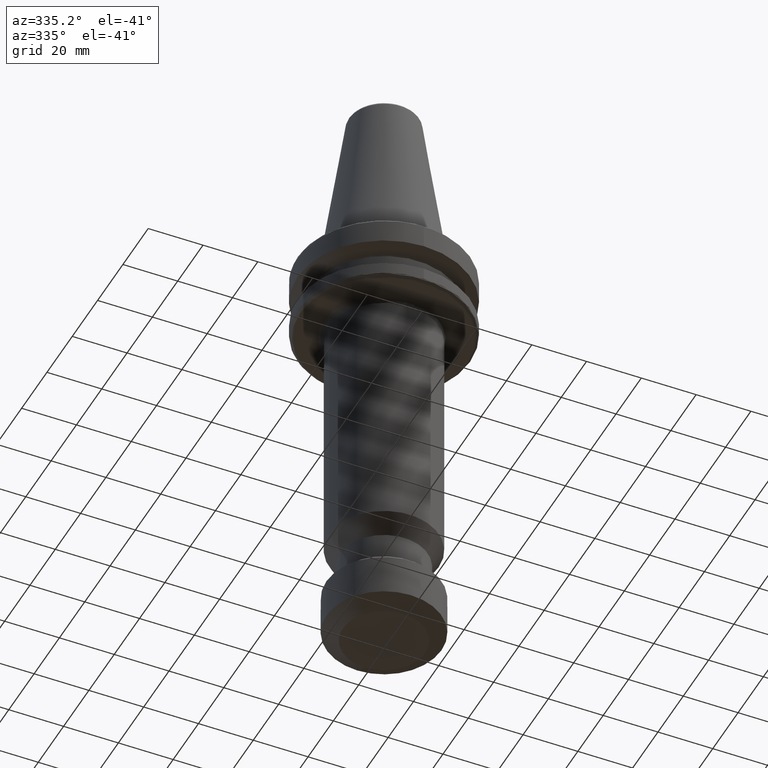
[diagram: clean part render]
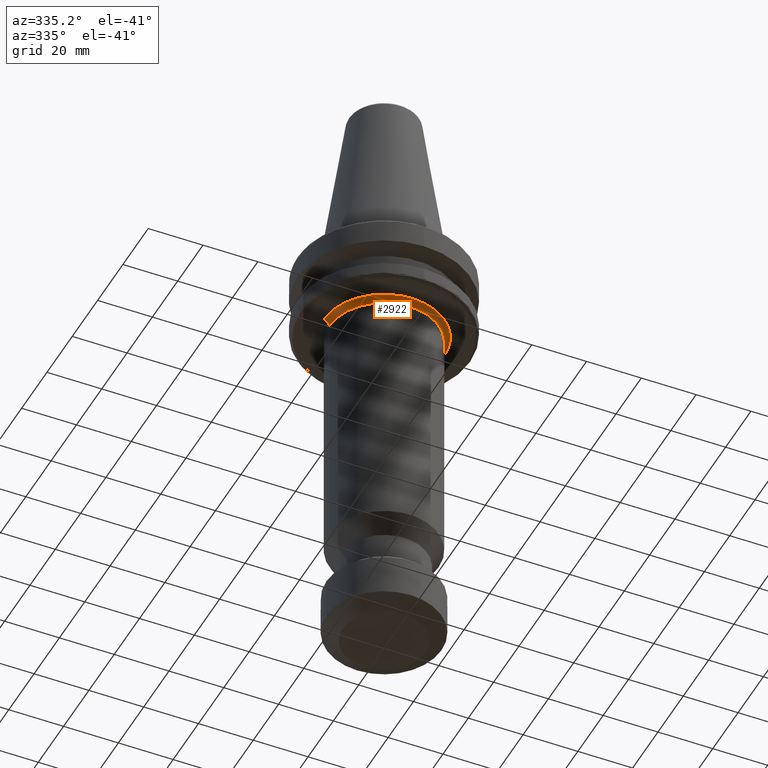
[diagram: same view with one face highlighted and labeled with its STEP entity id]
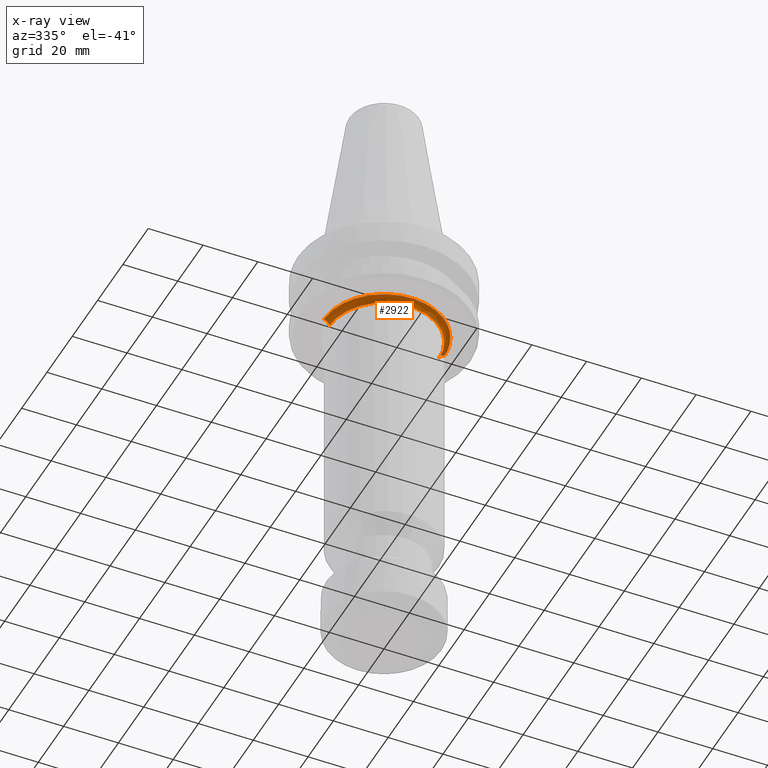
[diagram: x-ray of the same camera — body ghosted, the highlighted face saturated]
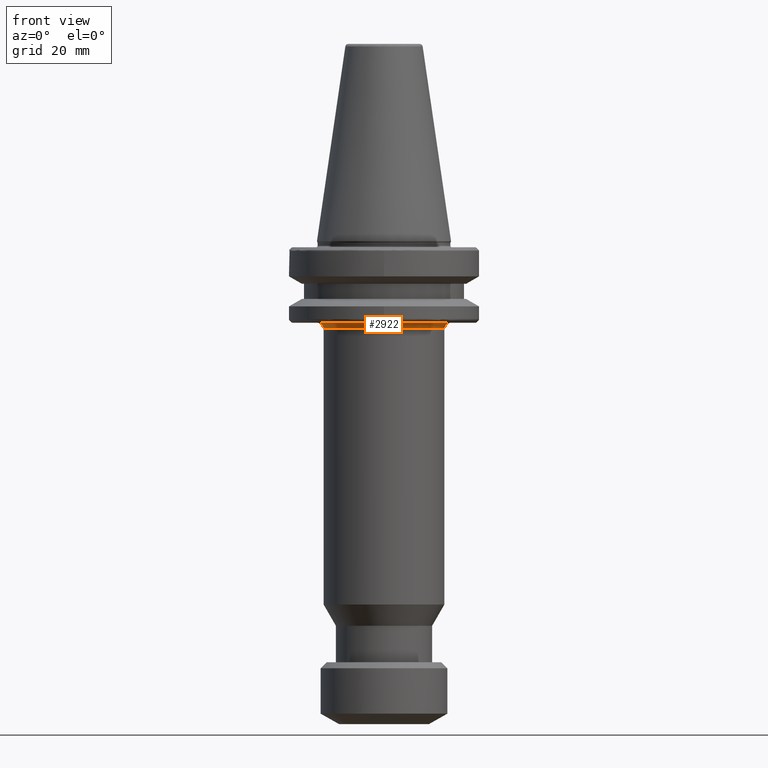
[diagram: same view with one face highlighted and labeled with its STEP entity id]
A machine part, auxiliary view. The second image highlights one B-rep face of the part: STEP entity #2922.
The next image is the same camera in x-ray: the body ghosted, the highlighted face saturated — about 0% of this face is hidden behind the body in this view.
A second angle (front view) of the same face is appended — the face is thin or edge-on in the first view.
In plain terms, the highlighted face is a freeform B-spline surface patch.
Its self-contained STEP definition (entity closure, byte-faithful):
#17 = CARTESIAN_POINT ( 'NONE',  ( -19.99999999992038000, -6.153102855459935800E-009, -28.99999999972065700 ) ) ;
#42 = CARTESIAN_POINT ( 'NONE',  ( 22.00000001121869200, 0.0000000000000000000, -26.99999999980891000 ) ) ;
#49 = CARTESIAN_POINT ( 'NONE',  ( -8.173495906030069600, -20.42539875653572400, -27.00000000000000400 ) ) ;
#126 = CARTESIAN_POINT ( 'NONE',  ( 17.50083256765004000, -13.33134056816139800, -27.00000000000000700 ) ) ;
#142 = CARTESIAN_POINT ( 'NONE',  ( 10.15929076831794800, -19.51388649897149500, -26.99999999999999300 ) ) ;
#158 = CARTESIAN_POINT ( 'NONE',  ( 19.99999999992038000, -1.795872568574660700E-009, -28.99999999972065700 ) ) ;
#223 = CARTESIAN_POINT ( 'NONE',  ( 21.80328170962743400, -2.935493892122123000, -27.00000000000000400 ) ) ;
#289 = CARTESIAN_POINT ( 'NONE',  ( -22.00000001121869500, 0.0000000000000000000, -26.99999999980891000 ) ) ;
#372 = B_SPLINE_CURVE_WITH_KNOTS ( 'NONE', 3,
 ( #2903, #2896, #3059, #3268, #3321, #3361, #3381, #3099, #3403, #3005, #2992, #3032, #836, #3290, #3027, #3150, #3246, #3022, #3103, #2948, #3400, #3206, #2188, #801, #3075, #3015, #3216, #3227, #1341, #3304, #2365, #3083, #3335, #3393, #3331, #2965, #3179, #3007, #2956, #3176, #3416, #3243, #1242, #3185, #3167, #3094, #2988, #2566, #3278, #646, #2982, #3030, #3251, #2946, #3225, #3141, #3258, #3411, #3288, #3283, #3305, #3153, #1571, #3109, #3011, #3049, #3148, #3384, #1180, #3265, #3345, #3367, #1597, #399, #2959, #49, #3196, #3315, #1894, #3127, #1781, #3217, #3280, #2832, #3135, #3270, #3054, #2993, #3311, #3241, #3068, #3424, #3028, #3244, #3264, #3420, #3125, #3200, #1059, #1874, #3123, #3052, #3234, #2975, #3061, #3036, #1589, #3042, #3366, #3017, #3037, #3100, #3310, #142, #3332, #3326, #2677, #2984, #3372, #3294, #3378, #2642, #1505, #3277, #2968, #3211, #3328, #3048, #3066, #3252, #2944, #2981, #3341, #3324, #3413, #3079, #2940, #955, #3272, #3163, #2973, #3117, #126, #1581, #3230, #2293, #2951, #2995, #3340, #3295, #3255, #3237, #3387, #3370, #731, #3316, #2941, #3433, #1495, #2952, #827, #2966, #3076, #1293, #3112, #912, #2784, #1388, #2815, #3113, #1672, #1675, #953, #2535, #470, #1969, #707, #2262, #1983, #223, #1437, #939, #1167 ),
 .UNSPECIFIED., .F., .F.,
 ( 4, 1, 1, 1, 1, 1, 2, 2, 1, 1, 1, 1, 1, 2, 2, 1, 1, 1, 1, 1, 2, 2, 1, 1, 1, 1, 2, 2, 1, 1, 1, 2, 2, 1, 1, 1, 2, 2, 1, 1, 1, 2, 2, 1, 1, 1, 2, 2, 1, 1, 1, 2, 2, 1, 1, 1, 2, 2, 1, 1, 2, 2, 1, 2, 2, 2, 1, 2, 2, 1, 1, 2, 2, 1, 1, 1, 2, 2, 1, 1, 1, 2, 2, 1, 1, 1, 2, 2, 1, 1, 1, 2, 2, 1, 1, 1, 1, 2, 2, 1, 1, 1, 1, 2, 2, 1, 1, 1, 1, 2, 2, 1, 1, 1, 1, 2, 2, 1, 1, 1, 1, 1, 2, 2, 1, 1, 1, 1, 1, 2, 2, 4 ),
 ( 0.0000000000000000000, 0.03124999999999727300, 0.04687499999999590600, 0.05468749999999524000, 0.05859374999999490700, 0.06054687499999471300, 0.06152343749999460800, 0.06249999999999451100, 0.09374999999999152100, 0.1093749999999899900, 0.1171874999999892200, 0.1210937499999888300, 0.1230468749999886200, 0.1240234374999885500, 0.1249999999999884800, 0.1562499999999864600, 0.1718749999999853700, 0.1796874999999847900, 0.1835937499999845100, 0.1855468749999843500, 0.1865234374999843500, 0.1874999999999843200, 0.2031249999999841000, 0.2109374999999839600, 0.2148437499999839300, 0.2167968749999838200, 0.2177734374999838500, 0.2187499999999838700, 0.2343749999999849600, 0.2421874999999855100, 0.2460937499999857300, 0.2480468749999858700, 0.2499999999999860100, 0.2656249999999866800, 0.2734374999999869500, 0.2773437499999870700, 0.2792968749999871200, 0.2812499999999871800, 0.2968749999999877900, 0.3046874999999881200, 0.3085937499999882300, 0.3105468749999882900, 0.3124999999999883400, 0.3281249999999886800, 0.3359374999999889000, 0.3398437499999889500, 0.3417968749999890100, 0.3437499999999890600, 0.3593749999999889500, 0.3671874999999889500, 0.3710937499999889500, 0.3730468749999889000, 0.3749999999999887900, 0.3906249999999883400, 0.3984374999999881200, 0.4023437499999880700, 0.4042968749999880100, 0.4062499999999880100, 0.4218749999999881200, 0.4296874999999881800, 0.4335937499999881800, 0.4374999999999882300, 0.4531249999999884000, 0.4609374999999884000, 0.4687499999999884500, 0.4999999999999886800, 0.5156249999999887900, 0.5234374999999889000, 0.5312499999999889000, 0.5468749999999890100, 0.5546874999999891200, 0.5585937499999891200, 0.5624999999999891200, 0.5781249999999893400, 0.5859374999999893400, 0.5898437499999893400, 0.5917968749999894500, 0.5937499999999894500, 0.6093749999999897900, 0.6171874999999899000, 0.6210937499999900100, 0.6230468749999900100, 0.6249999999999901200, 0.6406249999999897900, 0.6484374999999896700, 0.6523437499999895600, 0.6542968749999896700, 0.6562499999999896700, 0.6718749999999893400, 0.6796874999999892300, 0.6835937499999892300, 0.6855468749999891200, 0.6874999999999891200, 0.7031249999999886800, 0.7109374999999884500, 0.7148437499999883400, 0.7167968749999882300, 0.7177734374999881200, 0.7187499999999880100, 0.7343749999999865700, 0.7421874999999857900, 0.7460937499999854600, 0.7480468749999851200, 0.7490234374999850100, 0.7499999999999849000, 0.7656249999999837900, 0.7734374999999832400, 0.7773437499999830100, 0.7792968749999829000, 0.7802734374999830100, 0.7812499999999830100, 0.7968749999999841200, 0.8046874999999846800, 0.8085937499999847900, 0.8105468749999850100, 0.8115234374999851200, 0.8124999999999852300, 0.8437499999999862300, 0.8593749999999867900, 0.8671874999999869000, 0.8710937499999870100, 0.8730468749999871200, 0.8740234374999871200, 0.8749999999999871200, 0.9062499999999903400, 0.9218749999999917800, 0.9296874999999925600, 0.9335937499999928900, 0.9355468749999931200, 0.9365234374999932300, 0.9374999999999933400, 1.000000000000000000 ),
 .UNSPECIFIED. ) ;
#399 = CARTESIAN_POINT ( 'NONE',  ( -8.679385648396092300, -20.21763437483837200, -26.99999999999999600 ) ) ;
#468 = EDGE_CURVE ( 'NONE', #1903, #3041, #2519, .T. ) ;
#470 = CARTESIAN_POINT ( 'NONE',  ( 21.73654110988302100, -3.399530161110510700, -27.00000000000000000 ) ) ;
#481 = ORIENTED_EDGE ( 'NONE', *, *, #1726, .F. ) ;
#520 = CIRCLE ( 'NONE', #1567, 20.00000000000000000 ) ;
#531 = EDGE_CURVE ( 'NONE', #2656, #2041, #2680, .T. ) ;
#646 = CARTESIAN_POINT ( 'NONE',  ( -16.19076467651567700, -14.89501627364170000, -27.00000000000000400 ) ) ;
#707 = CARTESIAN_POINT ( 'NONE',  ( 21.78895255184394800, -3.040328235875190200, -27.00000000000000000 ) ) ;
#731 = CARTESIAN_POINT ( 'NONE',  ( 18.97720196965637000, -11.13467767543520100, -27.00000000000000000 ) ) ;
#748 = CARTESIAN_POINT ( 'NONE',  ( -20.82842712506634100, 0.0000000000000000000, -27.00000000092554200 ) ) ;
#801 = CARTESIAN_POINT ( 'NONE',  ( -19.89360710836334100, -9.394425037890203000, -26.99999999999999300 ) ) ;
#827 = CARTESIAN_POINT ( 'NONE',  ( 19.75666883649521200, -9.678556099392377400, -27.00000000000000000 ) ) ;
#836 = CARTESIAN_POINT ( 'NONE',  ( -21.37341307168529200, -5.226198028199752900, -26.99999999999999300 ) ) ;
#912 = CARTESIAN_POINT ( 'NONE',  ( 20.96164560837247100, -6.682290359482533600, -26.99999999999999300 ) ) ;
#939 = CARTESIAN_POINT ( 'NONE',  ( 21.99999999870136900, -0.9779484182497384400, -27.00000000000000700 ) ) ;
#953 = CARTESIAN_POINT ( 'NONE',  ( 21.47679687482368000, -4.825525324130469000, -27.00000000000000000 ) ) ;
#955 = CARTESIAN_POINT ( 'NONE',  ( 16.14143180955440100, -14.94840149895921200, -27.00000000000000000 ) ) ;
#1059 = CARTESIAN_POINT ( 'NONE',  ( 4.641485725647572600, -21.50692556377327600, -26.99999999999999300 ) ) ;
#1167 = CARTESIAN_POINT ( 'NONE',  ( 22.00000001121869200, 0.0000000000000000000, -26.99999999980891000 ) ) ;
#1180 = CARTESIAN_POINT ( 'NONE',  ( -10.54006075001914400, -19.31087498501645400, -27.00000000000000000 ) ) ;
#1242 = CARTESIAN_POINT ( 'NONE',  ( -17.62819144436239000, -13.16240955457781300, -27.00000000000000700 ) ) ;
#1293 = CARTESIAN_POINT ( 'NONE',  ( 20.42186733119319400, -8.223918895811449300, -26.99999999999999300 ) ) ;
#1341 = CARTESIAN_POINT ( 'NONE',  ( -19.62676309508689700, -9.945119037977759600, -27.00000000000000700 ) ) ;
#1388 = CARTESIAN_POINT ( 'NONE',  ( 21.08142257468993800, -6.290967004406418500, -26.99999999999999600 ) ) ;
#1437 = CARTESIAN_POINT ( 'NONE',  ( 21.93510324354296900, -1.951399745641772000, -26.99999999999999600 ) ) ;
#1495 = CARTESIAN_POINT ( 'NONE',  ( 19.70985842298505400, -9.773665680997030600, -27.00000000000000000 ) ) ;
#1505 = CARTESIAN_POINT ( 'NONE',  ( 12.48455018687852400, -18.11459585165569300, -26.99999999999999600 ) ) ;
#1567 = AXIS2_PLACEMENT_3D ( 'NONE', #2311, #2307, #2300 ) ;
#1571 = CARTESIAN_POINT ( 'NONE',  ( -12.61092744813771700, -18.02684304559487700, -27.00000000000000700 ) ) ;
#1581 = CARTESIAN_POINT ( 'NONE',  ( 17.54341895000497300, -13.27512476814417000, -27.00000000000000400 ) ) ;
#1589 = CARTESIAN_POINT ( 'NONE',  ( 7.760698686955521500, -20.58578766338533200, -27.00000000000000000 ) ) ;
#1597 = CARTESIAN_POINT ( 'NONE',  ( -9.379296785239677800, -19.90892377151206100, -27.00000000000000700 ) ) ;
#1654 = CARTESIAN_POINT ( 'NONE',  ( -20.00000000092553900, 0.0000000000000000000, -27.82842712506635200 ) ) ;
#1672 = CARTESIAN_POINT ( 'NONE',  ( 21.11515833519508700, -6.176598551940923400, -26.99999999999999300 ) ) ;
#1675 = CARTESIAN_POINT ( 'NONE',  ( 21.27493323261690600, -5.628846329216254500, -27.00000000000000400 ) ) ;
#1726 = EDGE_CURVE ( 'NONE', #2041, #1903, #372, .T. ) ;
#1781 = CARTESIAN_POINT ( 'NONE',  ( -6.171569319574797600, -21.11871598771537600, -27.00000000000000000 ) ) ;
#1857 = CARTESIAN_POINT ( 'NONE',  ( 20.82842712506634100, 0.0000000000000000000, -27.00000000092554200 ) ) ;
#1874 = CARTESIAN_POINT ( 'NONE',  ( 4.973629957077357700, -21.43072956689443500, -27.00000000000000000 ) ) ;
#1894 = CARTESIAN_POINT ( 'NONE',  ( -7.552563884389018200, -20.66784101958773300, -27.00000000000000000 ) ) ;
#1903 = VERTEX_POINT ( 'NONE', #3338 ) ;
#1969 = CARTESIAN_POINT ( 'NONE',  ( 21.77203872082604300, -3.160182350263864800, -27.00000000000000000 ) ) ;
#1983 = CARTESIAN_POINT ( 'NONE',  ( 21.80069589386361900, -2.954645212444914700, -27.00000000000000000 ) ) ;
#2041 = VERTEX_POINT ( 'NONE', #3168 ) ;
#2115 = ORIENTED_EDGE ( 'NONE', *, *, #531, .F. ) ;
#2188 = CARTESIAN_POINT ( 'NONE',  ( -20.00923014885717100, -9.147366188439647800, -27.00000000000000700 ) ) ;
#2219 = EDGE_LOOP ( 'NONE', ( #3071, #481, #2115, #2693 ) ) ;
#2262 = CARTESIAN_POINT ( 'NONE',  ( 21.79602241346871600, -2.988923570644606000, -27.00000000000001100 ) ) ;
#2293 = CARTESIAN_POINT ( 'NONE',  ( 17.58659151599892600, -13.21787709638211800, -27.00000000000000000 ) ) ;
#2300 = DIRECTION ( 'NONE',  ( 1.000000000000000000, 0.0000000000000000000, -1.734723475976807100E-016 ) ) ;
#2307 = DIRECTION ( 'NONE',  ( 0.0000000000000000000, 0.0000000000000000000, 1.000000000000000000 ) ) ;
#2311 = CARTESIAN_POINT ( 'NONE',  ( 0.0000000000000000000, 0.0000000000000000000, -28.99999999999999600 ) ) ;
#2365 = CARTESIAN_POINT ( 'NONE',  ( -19.10345111620140200, -10.91368762740030500, -26.99999999999999300 ) ) ;
#2519 =( BOUNDED_CURVE ( )  B_SPLINE_CURVE ( 3, ( #42, #1857, #3146, #158 ),
 .UNSPECIFIED., .F., .F. ) 
 B_SPLINE_CURVE_WITH_KNOTS ( ( 4, 4 ),
 ( 0.06314145699999979000, 0.9368585430000011500 ),
 .UNSPECIFIED. ) 
 CURVE ( )  GEOMETRIC_REPRESENTATION_ITEM ( )  RATIONAL_B_SPLINE_CURVE ( ( 0.9565783021659933800, 0.7697947703959739900, 0.7697947703959744400, 0.9565783021659939300 ) ) 
 REPRESENTATION_ITEM ( '' )  );
#2526 =( BOUNDED_SURFACE ( )  B_SPLINE_SURFACE ( 3, 3, ( 
 ( #3269, #3214, #3207, #3204 ),
 ( #3198, #3192, #3190, #3182 ),
 ( #3177, #3174, #3169, #3164 ),
 ( #3157, #3151, #3149, #3139 ) ),
 .UNSPECIFIED., .F., .F., .F. ) 
 B_SPLINE_SURFACE_WITH_KNOTS ( ( 4, 4 ),
 ( 4, 4 ),
 ( 0.0000000000000000000, 1.000000000000000000 ),
 ( 0.0000000000000000000, 1.000000000000000000 ),
 .UNSPECIFIED. ) 
 GEOMETRIC_REPRESENTATION_ITEM ( )  RATIONAL_B_SPLINE_SURFACE ( (
 ( 1.000000000000000000, 0.3333333333333330400, 0.3333333333333330400, 1.000000000000000000),
 ( 0.7553208711179720800, 0.2517736237059909900, 0.2517736237059909900, 0.7553208711179720800),
 ( 0.7553208711179720800, 0.2517736237059909900, 0.2517736237059909900, 0.7553208711179720800),
 ( 1.000000000000000000, 0.3333333333333330400, 0.3333333333333330400, 1.000000000000000000) ) ) 
 REPRESENTATION_ITEM ( '' )  SURFACE ( )  );
#2535 = CARTESIAN_POINT ( 'NONE',  ( 21.65886609236825700, -3.876784111080944700, -26.99999999999999600 ) ) ;
#2566 = CARTESIAN_POINT ( 'NONE',  ( -16.28446617526294600, -14.79250820741499300, -27.00000000000000400 ) ) ;
#2642 = CARTESIAN_POINT ( 'NONE',  ( 12.43918600565722300, -18.14578206937141800, -27.00000000000000000 ) ) ;
#2656 = VERTEX_POINT ( 'NONE', #17 ) ;
#2677 = CARTESIAN_POINT ( 'NONE',  ( 10.72790264257050200, -19.21179658823268700, -26.99999999999999600 ) ) ;
#2680 =( BOUNDED_CURVE ( )  B_SPLINE_CURVE ( 3, ( #3408, #1654, #748, #289 ),
 .UNSPECIFIED., .F., .F. ) 
 B_SPLINE_CURVE_WITH_KNOTS ( ( 4, 4 ),
 ( 0.06314145699999754200, 0.9368585429999987100 ),
 .UNSPECIFIED. ) 
 CURVE ( )  GEOMETRIC_REPRESENTATION_ITEM ( )  RATIONAL_B_SPLINE_CURVE ( ( 0.9565783021659948200, 0.7697947703959745500, 0.7697947703959737700, 0.9565783021659922700 ) ) 
 REPRESENTATION_ITEM ( '' )  );
#2692 = CARTESIAN_POINT ( 'NONE',  ( 19.99999999992038000, -1.795872568574660700E-009, -28.99999999972065700 ) ) ;
#2693 = ORIENTED_EDGE ( 'NONE', *, *, #3173, .T. ) ;
#2784 = CARTESIAN_POINT ( 'NONE',  ( 21.04217103493865800, -6.421671065920407700, -26.99999999999999300 ) ) ;
#2808 = FACE_OUTER_BOUND ( 'NONE', #2219, .T. ) ;
#2815 = CARTESIAN_POINT ( 'NONE',  ( 21.09802798311223500, -6.234866460600508200, -26.99999999999999300 ) ) ;
#2832 = CARTESIAN_POINT ( 'NONE',  ( -5.525536710409186400, -21.29509890050771000, -26.99999999999999300 ) ) ;
#2896 = CARTESIAN_POINT ( 'NONE',  ( -21.99999999870137700, -0.4888035425004361700, -26.99999999999999600 ) ) ;
#2903 = CARTESIAN_POINT ( 'NONE',  ( -22.00000001121869500, 0.0000000000000000000, -26.99999999980891000 ) ) ;
#2922 = ADVANCED_FACE ( 'NONE', ( #2808 ), #2526, .F. ) ;
#2940 = CARTESIAN_POINT ( 'NONE',  ( 16.12393015034069400, -14.96727898789726700, -27.00000000000000000 ) ) ;
#2941 = CARTESIAN_POINT ( 'NONE',  ( 19.50910683120553200, -10.17080125223012700, -26.99999999999999300 ) ) ;
#2944 = CARTESIAN_POINT ( 'NONE',  ( 14.76228075183604300, -16.31656746885342500, -27.00000000000000400 ) ) ;
#2946 = CARTESIAN_POINT ( 'NONE',  ( -14.72380753533613400, -16.34706192389037600, -27.00000000000000000 ) ) ;
#2948 = CARTESIAN_POINT ( 'NONE',  ( -20.94530954579827100, -6.758990554991461500, -27.00000000000000000 ) ) ;
#2951 = CARTESIAN_POINT ( 'NONE',  ( 17.81453572635596300, -12.91396644831076800, -26.99999999999999600 ) ) ;
#2952 = CARTESIAN_POINT ( 'NONE',  ( 19.73797670085978200, -9.716617883165566700, -27.00000000000000400 ) ) ;
#2956 = CARTESIAN_POINT ( 'NONE',  ( -17.96942302496152500, -12.69472375737756300, -26.99999999999999300 ) ) ;
#2959 = CARTESIAN_POINT ( 'NONE',  ( -8.325806383248732300, -20.36423295087107700, -27.00000000000000000 ) ) ;
#2965 = CARTESIAN_POINT ( 'NONE',  ( -18.81279088583273300, -11.40523452830347900, -27.00000000000000700 ) ) ;
#2966 = CARTESIAN_POINT ( 'NONE',  ( 19.76673631653314100, -9.657975765687716300, -27.00000000000000400 ) ) ;
#2968 = CARTESIAN_POINT ( 'NONE',  ( 13.35903612363084600, -17.48803850692375100, -27.00000000000000400 ) ) ;
#2973 = CARTESIAN_POINT ( 'NONE',  ( 17.19851121330617600, -13.72127342590871600, -27.00000000000000000 ) ) ;
#2975 = CARTESIAN_POINT ( 'NONE',  ( 6.493990125829284900, -21.02808110293310100, -26.99999999999998600 ) ) ;
#2981 = CARTESIAN_POINT ( 'NONE',  ( 15.19612920091321900, -15.91696185612142700, -27.00000000000000400 ) ) ;
#2982 = CARTESIAN_POINT ( 'NONE',  ( -15.89027602191389700, -15.22019767398475500, -27.00000000000000000 ) ) ;
#2984 = CARTESIAN_POINT ( 'NONE',  ( 11.28084239446129400, -18.89602606897208000, -27.00000000000000000 ) ) ;
#2988 = CARTESIAN_POINT ( 'NONE',  ( -16.37917165823520800, -14.68802835938996900, -26.99999999999998900 ) ) ;
#2992 = CARTESIAN_POINT ( 'NONE',  ( -21.73187701903804800, -3.468748153548438100, -26.99999999999999600 ) ) ;
#2993 = CARTESIAN_POINT ( 'NONE',  ( -3.190043840882071300, -21.76868033318885800, -27.00000000000000000 ) ) ;
#2995 = CARTESIAN_POINT ( 'NONE',  ( 18.12558588984577700, -12.47748282800246100, -27.00000000000000400 ) ) ;
#3005 = CARTESIAN_POINT ( 'NONE',  ( -21.80760450554452100, -2.903216664320891600, -27.00000000000000700 ) ) ;
#3007 = CARTESIAN_POINT ( 'NONE',  ( -18.32612816154068400, -12.18102963252522400, -26.99999999999999300 ) ) ;
#3011 = CARTESIAN_POINT ( 'NONE',  ( -12.17735897695360800, -18.32738217774310000, -26.99999999999998600 ) ) ;
#3015 = CARTESIAN_POINT ( 'NONE',  ( -19.80935387639393100, -9.570258349828618400, -27.00000000000000700 ) ) ;
#3017 = CARTESIAN_POINT ( 'NONE',  ( 8.377725046961838700, -20.34713034863823500, -27.00000000000000400 ) ) ;
#3022 = CARTESIAN_POINT ( 'NONE',  ( -21.12966782541992600, -6.126777882558399400, -27.00000000000000000 ) ) ;
#3027 = CARTESIAN_POINT ( 'NONE',  ( -21.18669895867657300, -5.927242930826839300, -27.00000000000000400 ) ) ;
#3028 = CARTESIAN_POINT ( 'NONE',  ( 1.144175577424184000, -21.97861926492932100, -26.99999999999999300 ) ) ;
#3030 = CARTESIAN_POINT ( 'NONE',  ( -15.47849729912649500, -15.64250963980091300, -27.00000000000000000 ) ) ;
#3032 = CARTESIAN_POINT ( 'NONE',  ( -21.59113876658787500, -4.284999534272675900, -26.99999999999999300 ) ) ;
#3036 = CARTESIAN_POINT ( 'NONE',  ( 7.603529968593580400, -20.64481450962105300, -27.00000000000000000 ) ) ;
#3037 = CARTESIAN_POINT ( 'NONE',  ( 8.981551573916899400, -20.09149586882561800, -27.00000000000000400 ) ) ;
#3041 = VERTEX_POINT ( 'NONE', #2692 ) ;
#3042 = CARTESIAN_POINT ( 'NONE',  ( 7.865350501724296200, -20.54602933963174700, -27.00000000000000700 ) ) ;
#3048 = CARTESIAN_POINT ( 'NONE',  ( 14.31059236157542400, -16.70956351226878700, -26.99999999999999600 ) ) ;
#3049 = CARTESIAN_POINT ( 'NONE',  ( -11.64364176477155200, -18.67465630377202500, -26.99999999999999600 ) ) ;
#3052 = CARTESIAN_POINT ( 'NONE',  ( 5.306912876120397200, -21.35062245802755100, -27.00000000000000000 ) ) ;
#3054 = CARTESIAN_POINT ( 'NONE',  ( -3.638760901276532500, -21.69820716370238500, -26.99999999999999300 ) ) ;
#3059 = CARTESIAN_POINT ( 'NONE',  ( -21.97566371551697600, -1.220450447147798600, -27.00000000000000700 ) ) ;
#3061 = CARTESIAN_POINT ( 'NONE',  ( 7.235465985620848500, -20.77826934174184400, -26.99999999999999300 ) ) ;
#3066 = CARTESIAN_POINT ( 'NONE',  ( 14.38833630431314800, -16.64266609412318900, -27.00000000000000000 ) ) ;
#3068 = CARTESIAN_POINT ( 'NONE',  ( -0.9163007155228873900, -21.99997709154434100, -27.00000000000000400 ) ) ;
#3071 = ORIENTED_EDGE ( 'NONE', *, *, #468, .F. ) ;
#3075 = CARTESIAN_POINT ( 'NONE',  ( -19.83478189930628900, -9.517566544034277600, -26.99999999999999600 ) ) ;
#3076 = CARTESIAN_POINT ( 'NONE',  ( 20.04870749533971300, -9.079606945092180600, -27.00000000000000000 ) ) ;
#3079 = CARTESIAN_POINT ( 'NONE',  ( 16.09039776383782800, -15.00332103608521600, -27.00000000000000400 ) ) ;
#3083 = CARTESIAN_POINT ( 'NONE',  ( -18.95383181575240500, -11.16981452427756600, -27.00000000000000400 ) ) ;
#3094 = CARTESIAN_POINT ( 'NONE',  ( -16.59770566928389400, -14.44224065402598400, -26.99999999999999600 ) ) ;
#3099 = CARTESIAN_POINT ( 'NONE',  ( -21.81334260794911400, -2.859767936118514900, -26.99999999999999600 ) ) ;
#3100 = CARTESIAN_POINT ( 'NONE',  ( 9.671938745007265600, -19.76203662579925800, -26.99999999999999600 ) ) ;
#3103 = CARTESIAN_POINT ( 'NONE',  ( -21.12545907540817000, -6.141281544885449900, -27.00000000000000000 ) ) ;
#3109 = CARTESIAN_POINT ( 'NONE',  ( -12.57035681744040200, -18.05516263616660300, -27.00000000000000000 ) ) ;
#3112 = CARTESIAN_POINT ( 'NONE',  ( 20.79250536698551200, -7.200373628743392400, -27.00000000000000400 ) ) ;
#3113 = CARTESIAN_POINT ( 'NONE',  ( 21.10905010427320100, -6.197447316409288500, -26.99999999999999600 ) ) ;
#3117 = CARTESIAN_POINT ( 'NONE',  ( 17.40086195960385100, -13.46199966214829000, -26.99999999999999600 ) ) ;
#3123 = CARTESIAN_POINT ( 'NONE',  ( 5.194743925482323600, -21.37820138357836800, -26.99999999999999300 ) ) ;
#3125 = CARTESIAN_POINT ( 'NONE',  ( 3.190362085560117100, -21.77220126453356700, -27.00000000000000400 ) ) ;
#3127 = CARTESIAN_POINT ( 'NONE',  ( -6.920324969315164900, -20.89165357012634400, -26.99999999999999300 ) ) ;
#3135 = CARTESIAN_POINT ( 'NONE',  ( -4.974776233688007000, -21.43498900880439400, -26.99999999999999600 ) ) ;
#3139 = CARTESIAN_POINT ( 'NONE',  ( -20.00999166900000500, 0.0000000000000000000, -29.19966683299999800 ) ) ;
#3141 = CARTESIAN_POINT ( 'NONE',  ( -14.53983089443448600, -16.51047142936989000, -27.00000000000000700 ) ) ;
#3146 = CARTESIAN_POINT ( 'NONE',  ( 20.00000000092553500, 0.0000000000000000000, -27.82842712506633700 ) ) ;
#3148 = CARTESIAN_POINT ( 'NONE',  ( -11.00396152370975900, -19.05236024101121100, -26.99999999999999300 ) ) ;
#3149 = CARTESIAN_POINT ( 'NONE',  ( -20.00999166900000900, -40.01998333900000700, -29.19966683299999800 ) ) ;
#3150 = CARTESIAN_POINT ( 'NONE',  ( -21.15362828635580100, -6.043679250613158700, -27.00000000000000400 ) ) ;
#3151 = CARTESIAN_POINT ( 'NONE',  ( 20.00999166900000900, -40.01998333900000700, -29.19966683299999800 ) ) ;
#3153 = CARTESIAN_POINT ( 'NONE',  ( -12.69483133481001900, -17.96785555769728800, -27.00000000000000000 ) ) ;
#3157 = CARTESIAN_POINT ( 'NONE',  ( 20.00999166900000500, 0.0000000000000000000, -29.19966683299999800 ) ) ;
#3163 = CARTESIAN_POINT ( 'NONE',  ( 16.78417159988949000, -14.23164325657627100, -27.00000000000000400 ) ) ;
#3164 = CARTESIAN_POINT ( 'NONE',  ( -19.87355915500000200, 0.0000000000000000000, -27.83989247000000900 ) ) ;
#3167 = CARTESIAN_POINT ( 'NONE',  ( -17.02499189450135800, -13.94265967007559000, -27.00000000000000700 ) ) ;
#3168 = CARTESIAN_POINT ( 'NONE',  ( -22.00000001121869500, 0.0000000000000000000, -26.99999999980891000 ) ) ;
#3169 = CARTESIAN_POINT ( 'NONE',  ( -19.87355915500000200, -39.74711830900000800, -27.83989247000000200 ) ) ;
#3173 = EDGE_CURVE ( 'NONE', #2656, #3041, #520, .T. ) ;
#3174 = CARTESIAN_POINT ( 'NONE',  ( 19.87355915500000200, -39.74711830900000800, -27.83989247000000200 ) ) ;
#3176 = CARTESIAN_POINT ( 'NONE',  ( -17.78630124813897600, -12.94841411375629800, -27.00000000000000400 ) ) ;
#3177 = CARTESIAN_POINT ( 'NONE',  ( 19.87355915500000200, 0.0000000000000000000, -27.83989247000000900 ) ) ;
#3179 = CARTESIAN_POINT ( 'NONE',  ( -18.61552384935264800, -11.72989739048916200, -27.00000000000000000 ) ) ;
#3182 = CARTESIAN_POINT ( 'NONE',  ( -20.83989247000000200, 0.0000000000000000000, -26.87355915500000200 ) ) ;
#3185 = CARTESIAN_POINT ( 'NONE',  ( -17.37446843575085600, -13.50072355830824700, -27.00000000000000000 ) ) ;
#3190 = CARTESIAN_POINT ( 'NONE',  ( -20.83989247000000200, -41.67978493900000100, -26.87355915500000600 ) ) ;
#3192 = CARTESIAN_POINT ( 'NONE',  ( 20.83989247000000200, -41.67978493900000100, -26.87355915500000600 ) ) ;
#3196 = CARTESIAN_POINT ( 'NONE',  ( -8.071783030897368100, -20.46580659242497900, -27.00000000000000000 ) ) ;
#3198 = CARTESIAN_POINT ( 'NONE',  ( 20.83989247000000200, 0.0000000000000000000, -26.87355915500000200 ) ) ;
#3200 = CARTESIAN_POINT ( 'NONE',  ( 3.863169567221727000, -21.66654227649045700, -26.99999999999999300 ) ) ;
#3204 = CARTESIAN_POINT ( 'NONE',  ( -22.19966683299999800, 0.0000000000000000000, -27.00999166900000500 ) ) ;
#3206 = CARTESIAN_POINT ( 'NONE',  ( -20.23236671936358600, -8.650145140888909600, -26.99999999999998600 ) ) ;
#3207 = CARTESIAN_POINT ( 'NONE',  ( -22.19966683299999800, -44.39933366700000800, -27.00999166900000100 ) ) ;
#3211 = CARTESIAN_POINT ( 'NONE',  ( 13.91849547433213600, -17.03964642337187700, -27.00000000000000000 ) ) ;
#3214 = CARTESIAN_POINT ( 'NONE',  ( 22.19966683299999800, -44.39933366700000800, -27.00999166900000100 ) ) ;
#3216 = CARTESIAN_POINT ( 'NONE',  ( -19.79235359022330700, -9.605367748044791700, -27.00000000000000400 ) ) ;
#3217 = CARTESIAN_POINT ( 'NONE',  ( -5.848286130653021600, -21.20873154710223900, -27.00000000000000700 ) ) ;
#3225 = CARTESIAN_POINT ( 'NONE',  ( -14.61356064058662300, -16.44524841761109700, -27.00000000000000700 ) ) ;
#3227 = CARTESIAN_POINT ( 'NONE',  ( -19.78456326037298400, -9.621407587779197400, -26.99999999999999300 ) ) ;
#3230 = CARTESIAN_POINT ( 'NONE',  ( 17.57175250180813800, -13.23759889136570000, -27.00000000000000000 ) ) ;
#3234 = CARTESIAN_POINT ( 'NONE',  ( 5.849271570843198400, -21.21289477872504700, -26.99999999999998600 ) ) ;
#3237 = CARTESIAN_POINT ( 'NONE',  ( 18.75458194380808800, -11.50069947290988100, -27.00000000000000400 ) ) ;
#3241 = CARTESIAN_POINT ( 'NONE',  ( -1.830132486822647800, -21.94290833135560000, -27.00000000000000000 ) ) ;
#3243 = CARTESIAN_POINT ( 'NONE',  ( -17.65356958504999700, -13.12834379681715500, -27.00000000000000400 ) ) ;
#3244 = CARTESIAN_POINT ( 'NONE',  ( 1.828400321617780900, -21.92511302424690800, -27.00000000000000400 ) ) ;
#3246 = CARTESIAN_POINT ( 'NONE',  ( -21.13927590759206900, -6.093543382808688200, -26.99999999999999600 ) ) ;
#3251 = CARTESIAN_POINT ( 'NONE',  ( -14.97861621840076800, -16.11549627263091700, -27.00000000000000000 ) ) ;
#3252 = CARTESIAN_POINT ( 'NONE',  ( 14.42868750779960000, -16.60768933957023600, -26.99999999999999600 ) ) ;
#3255 = CARTESIAN_POINT ( 'NONE',  ( 18.71948117526335400, -11.55787319273647100, -27.00000000000000400 ) ) ;
#3258 = CARTESIAN_POINT ( 'NONE',  ( -14.50437365968215000, -16.54163590514604500, -27.00000000000000000 ) ) ;
#3264 = CARTESIAN_POINT ( 'NONE',  ( 2.284150045420372700, -21.88230574094927400, -27.00000000000000000 ) ) ;
#3265 = CARTESIAN_POINT ( 'NONE',  ( -10.44665283936951600, -19.36156492726555800, -27.00000000000000400 ) ) ;
#3268 = CARTESIAN_POINT ( 'NONE',  ( -21.90468288956247600, -2.071311286638954000, -27.00000000000000700 ) ) ;
#3269 = CARTESIAN_POINT ( 'NONE',  ( 22.19966683299999800, 0.0000000000000000000, -27.00999166900000500 ) ) ;
#3270 = CARTESIAN_POINT ( 'NONE',  ( -4.309809322113850700, -21.58213768018496000, -27.00000000000000400 ) ) ;
#3272 = CARTESIAN_POINT ( 'NONE',  ( 16.41250086698148200, -14.65508420254277100, -26.99999999999999600 ) ) ;
#3277 = CARTESIAN_POINT ( 'NONE',  ( 12.86381202144862000, -17.85191645383036600, -26.99999999999999600 ) ) ;
#3278 = CARTESIAN_POINT ( 'NONE',  ( -16.22109628668905000, -14.86197083054542200, -27.00000000000000400 ) ) ;
#3280 = CARTESIAN_POINT ( 'NONE',  ( -5.632233357935922900, -21.26712038551700000, -26.99999999999999600 ) ) ;
#3283 = CARTESIAN_POINT ( 'NONE',  ( -13.11090800379864200, -17.66856487505969000, -27.00000000000000000 ) ) ;
#3288 = CARTESIAN_POINT ( 'NONE',  ( -13.68268724236909300, -17.23599265200387600, -27.00000000000000400 ) ) ;
#3290 = CARTESIAN_POINT ( 'NONE',  ( -21.25116745747298800, -5.694023579267158300, -27.00000000000000400 ) ) ;
#3294 = CARTESIAN_POINT ( 'NONE',  ( 12.21938571273195100, -18.29498398167850600, -26.99999999999999600 ) ) ;
#3295 = CARTESIAN_POINT ( 'NONE',  ( 18.63699130392032200, -11.69087203075370100, -27.00000000000000400 ) ) ;
#3304 = CARTESIAN_POINT ( 'NONE',  ( -19.39361299872038900, -10.39660660135982800, -27.00000000000000000 ) ) ;
#3305 = CARTESIAN_POINT ( 'NONE',  ( -12.82035399407270800, -17.87895304425578800, -26.99999999999999600 ) ) ;
#3310 = CARTESIAN_POINT ( 'NONE',  ( 10.01361305296313600, -19.58950225014151100, -27.00000000000000400 ) ) ;
#3311 = CARTESIAN_POINT ( 'NONE',  ( -2.966591391710888800, -21.80026513389561400, -27.00000000000000400 ) ) ;
#3315 = CARTESIAN_POINT ( 'NONE',  ( -8.021967249771178000, -20.48538779609547000, -27.00000000000000000 ) ) ;
#3316 = CARTESIAN_POINT ( 'NONE',  ( 19.23097498441570600, -10.69445131097506200, -26.99999999999999600 ) ) ;
#3321 = CARTESIAN_POINT ( 'NONE',  ( -21.85854535269200800, -2.496059902401842800, -26.99999999999999300 ) ) ;
#3324 = CARTESIAN_POINT ( 'NONE',  ( 15.92185244894825000, -15.18260748360898800, -27.00000000000000000 ) ) ;
#3326 = CARTESIAN_POINT ( 'NONE',  ( 10.30607099252059600, -19.43676071965671400, -27.00000000000000700 ) ) ;
#3328 = CARTESIAN_POINT ( 'NONE',  ( 14.19364962422161200, -16.80948342855575100, -27.00000000000000400 ) ) ;
#3331 = CARTESIAN_POINT ( 'NONE',  ( -18.82318245127308700, -11.38807322257280500, -27.00000000000000400 ) ) ;
#3332 = CARTESIAN_POINT ( 'NONE',  ( 10.25624166057404300, -19.46310434323221400, -27.00000000000000000 ) ) ;
#3335 = CARTESIAN_POINT ( 'NONE',  ( -18.87788757573051200, -11.29727456868044300, -26.99999999999998900 ) ) ;
#3338 = CARTESIAN_POINT ( 'NONE',  ( 22.00000001121869200, 0.0000000000000000000, -26.99999999980891000 ) ) ;
#3340 = CARTESIAN_POINT ( 'NONE',  ( 18.46965924894619700, -11.95524367380892300, -27.00000000000000000 ) ) ;
#3341 = CARTESIAN_POINT ( 'NONE',  ( 15.68313627463657400, -15.43072985065899000, -27.00000000000000000 ) ) ;
#3345 = CARTESIAN_POINT ( 'NONE',  ( -10.40120925862182400, -19.38602026880194600, -27.00000000000000400 ) ) ;
#3361 = CARTESIAN_POINT ( 'NONE',  ( -21.83281480328351900, -2.708263759287618600, -27.00000000000000000 ) ) ;
#3366 = CARTESIAN_POINT ( 'NONE',  ( 7.918822104449578300, -20.52547662996415300, -27.00000000000000400 ) ) ;
#3367 = CARTESIAN_POINT ( 'NONE',  ( -9.966796513760675300, -19.61772019507079900, -26.99999999999999600 ) ) ;
#3370 = CARTESIAN_POINT ( 'NONE',  ( 18.79018600331375300, -11.44243576049434800, -27.00000000000000400 ) ) ;
#3372 = CARTESIAN_POINT ( 'NONE',  ( 11.90930948735966200, -18.49994502778470500, -27.00000000000000400 ) ) ;
#3378 = CARTESIAN_POINT ( 'NONE',  ( 12.35138466908931000, -18.20566056359460600, -27.00000000000000000 ) ) ;
#3381 = CARTESIAN_POINT ( 'NONE',  ( -21.81928408333593000, -2.814323074981583500, -27.00000000000000000 ) ) ;
#3384 = CARTESIAN_POINT ( 'NONE',  ( -10.67986886313318500, -19.23434990718217500, -26.99999999999999600 ) ) ;
#3387 = CARTESIAN_POINT ( 'NONE',  ( 18.77792644873579400, -11.46254494462122000, -26.99999999999999600 ) ) ;
#3393 = CARTESIAN_POINT ( 'NONE',  ( -18.84509691790741200, -11.35177100113116700, -27.00000000000001100 ) ) ;
#3400 = CARTESIAN_POINT ( 'NONE',  ( -20.64620181845145900, -7.643289651188907500, -26.99999999999999300 ) ) ;
#3403 = CARTESIAN_POINT ( 'NONE',  ( -21.80934993648917300, -2.890062481031282300, -27.00000000000000000 ) ) ;
#3408 = CARTESIAN_POINT ( 'NONE',  ( -19.99999999992038000, -6.153102855459935800E-009, -28.99999999972065700 ) ) ;
#3411 = CARTESIAN_POINT ( 'NONE',  ( -14.15679153677561400, -16.84499494424689600, -26.99999999999999600 ) ) ;
#3413 = CARTESIAN_POINT ( 'NONE',  ( 16.04001369546658400, -15.05729470900430300, -26.99999999999999600 ) ) ;
#3416 = CARTESIAN_POINT ( 'NONE',  ( -17.70679851338652000, -13.05646211519416900, -27.00000000000000000 ) ) ;
#3420 = CARTESIAN_POINT ( 'NONE',  ( 2.513768373319812600, -21.85709002781464200, -27.00000000000000400 ) ) ;
#3424 = CARTESIAN_POINT ( 'NONE',  ( 0.4581503577614488600, -22.00001145281970200, -27.00000000000001100 ) ) ;
#3433 = CARTESIAN_POINT ( 'NONE',  ( 19.64368858699310000, -9.906463064472280400, -27.00000000000000000 ) ) ;